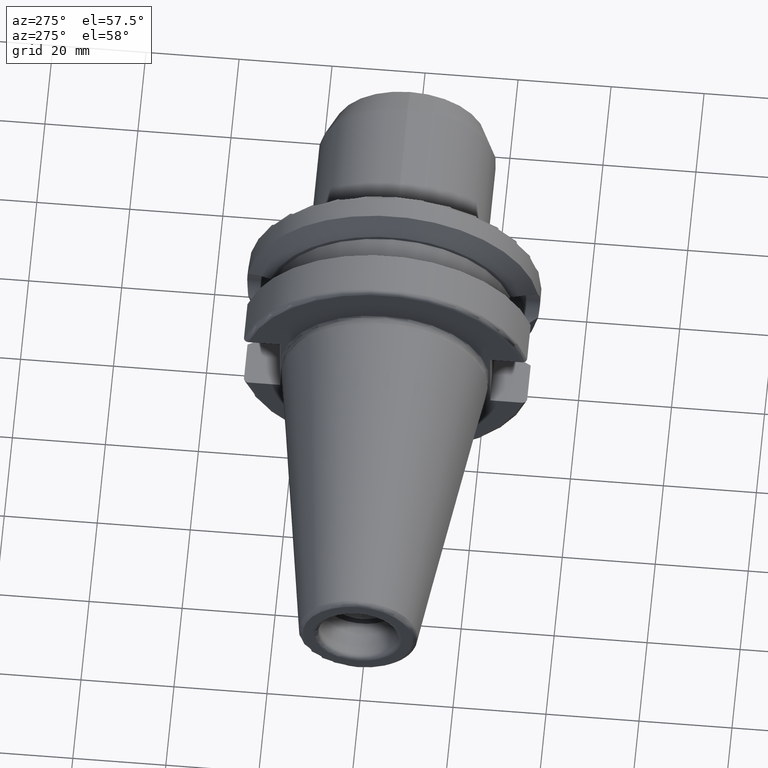
[diagram: clean part render]
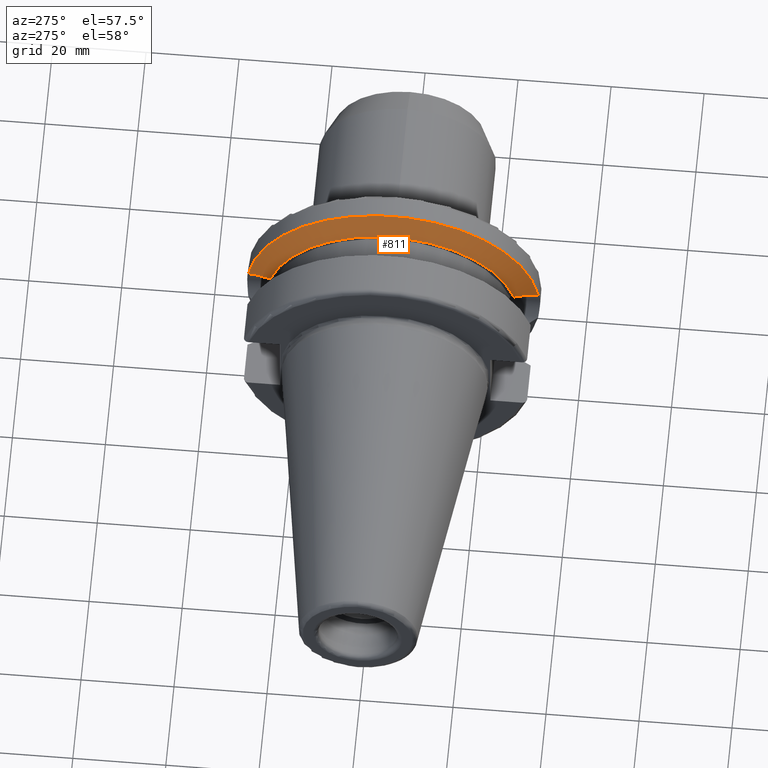
[diagram: same view with one face highlighted and labeled with its STEP entity id]
A machine part, auxiliary view. The second image highlights one B-rep face of the part: STEP entity #811.
In plain terms, the highlighted conical surface has half-angle 60.125 deg.
Its self-contained STEP definition (entity closure, byte-faithful):
#39=CONICAL_SURFACE('',#910,29.2970358274569,1.0493792127616);
#79=CIRCLE('',#889,31.5);
#89=CIRCLE('',#911,27.0940716549138);
#158=FACE_OUTER_BOUND('',#213,.T.);
#213=EDGE_LOOP('',(#691,#692,#693,#694));
#244=B_SPLINE_CURVE_WITH_KNOTS('',3,(#1510,#1511,#1512,#1513,#1514,#1515),
 .UNSPECIFIED.,.F.,.F.,(4,2,4),(1.46421027899563,1.54570476603974,2.04294020568402),
 .UNSPECIFIED.);
#253=B_SPLINE_CURVE_WITH_KNOTS('',3,(#1669,#1670,#1671,#1672,#1673,#1674),
 .UNSPECIFIED.,.F.,.F.,(4,2,4),(3.12975744792551,3.6269928875698,3.7084873746139),
 .UNSPECIFIED.);
#365=VERTEX_POINT('',#1502);
#366=VERTEX_POINT('',#1509);
#386=VERTEX_POINT('',#1589);
#399=VERTEX_POINT('',#1667);
#452=EDGE_CURVE('',#366,#365,#244,.T.);
#477=EDGE_CURVE('',#386,#365,#79,.T.);
#499=EDGE_CURVE('',#386,#399,#253,.T.);
#510=EDGE_CURVE('',#399,#366,#89,.T.);
#691=ORIENTED_EDGE('',*,*,#452,.T.);
#692=ORIENTED_EDGE('',*,*,#477,.F.);
#693=ORIENTED_EDGE('',*,*,#499,.T.);
#694=ORIENTED_EDGE('',*,*,#510,.T.);
#811=ADVANCED_FACE('',(#158),#39,.T.);
#889=AXIS2_PLACEMENT_3D('',#1600,#1050,#1051);
#910=AXIS2_PLACEMENT_3D('',#1706,#1107,#1108);
#911=AXIS2_PLACEMENT_3D('',#1707,#1109,#1110);
#1050=DIRECTION('center_axis',(1.,0.,0.));
#1051=DIRECTION('ref_axis',(0.,0.,-1.));
#1107=DIRECTION('center_axis',(1.,0.,0.));
#1108=DIRECTION('ref_axis',(0.,1.,0.));
#1109=DIRECTION('center_axis',(1.,0.,0.));
#1110=DIRECTION('ref_axis',(0.,0.,-1.));
#1502=CARTESIAN_POINT('',(21.6309636926618,-31.1782420264945,4.49079326370462));
#1509=CARTESIAN_POINT('',(19.1,-26.201311395455,6.89782574439221));
#1510=CARTESIAN_POINT('Ctrl Pts',(19.1,-26.201311395455,6.89782574439221));
#1511=CARTESIAN_POINT('Ctrl Pts',(19.2210929544554,-26.438473693351,6.82497151762397));
#1512=CARTESIAN_POINT('Ctrl Pts',(19.3406963650696,-26.6728819297427,6.74867108656043));
#1513=CARTESIAN_POINT('Ctrl Pts',(20.1784155384866,-28.3157123387483,6.1823136897693));
#1514=CARTESIAN_POINT('Ctrl Pts',(20.9728756148302,-29.8797957262938,5.46983244373119));
#1515=CARTESIAN_POINT('Ctrl Pts',(21.6309636926618,-31.1782420264945,4.49079326370462));
#1589=CARTESIAN_POINT('',(21.6309636926618,31.1782420264945,4.49079326370462));
#1600=CARTESIAN_POINT('Origin',(21.6309636926618,0.,0.));
#1667=CARTESIAN_POINT('',(19.1,26.201311395455,6.89782574439221));
#1669=CARTESIAN_POINT('Ctrl Pts',(21.6309636926618,31.1782420264945,4.49079326370461));
#1670=CARTESIAN_POINT('Ctrl Pts',(20.9728756148302,29.8797957262938,5.46983244373119));
#1671=CARTESIAN_POINT('Ctrl Pts',(20.1784155384866,28.3157123387483,6.1823136897693));
#1672=CARTESIAN_POINT('Ctrl Pts',(19.3406963650696,26.6728819297427,6.74867108656043));
#1673=CARTESIAN_POINT('Ctrl Pts',(19.2210929544554,26.438473693351,6.82497151762397));
#1674=CARTESIAN_POINT('Ctrl Pts',(19.1,26.201311395455,6.89782574439222));
#1706=CARTESIAN_POINT('Origin',(20.3654818463309,0.,0.));
#1707=CARTESIAN_POINT('Origin',(19.1,0.,0.));